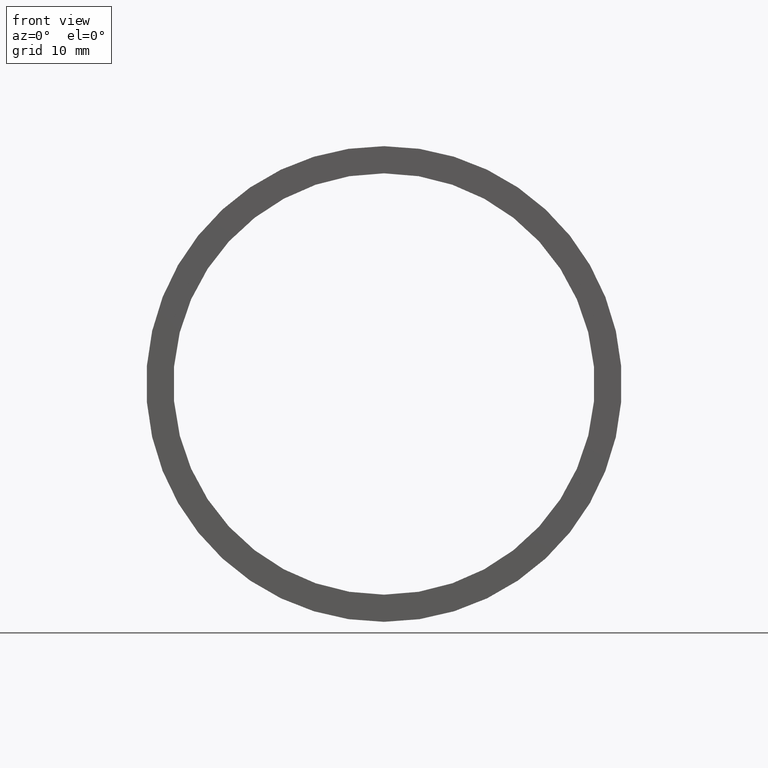
[diagram: clean part render]
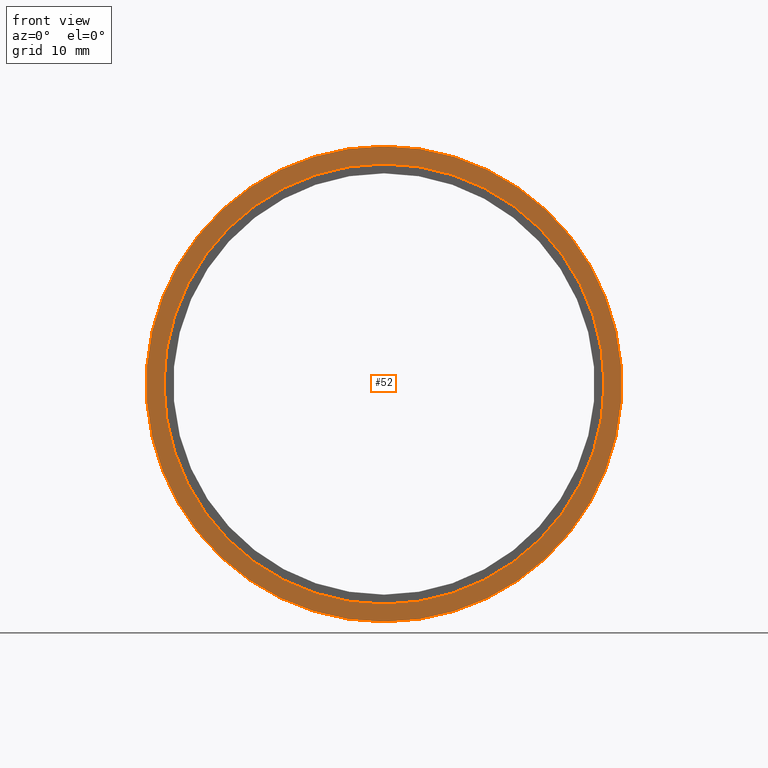
[diagram: same view with one face highlighted and labeled with its STEP entity id]
A machine part, front view. The second image highlights one B-rep face of the part: STEP entity #52.
In plain terms, the highlighted planar face has unit normal (-0, 1, 0).
Its self-contained STEP definition (entity closure, byte-faithful):
#27 = CARTESIAN_POINT ( 'NONE',  ( 0.0000000000000000000, -2.775557561562891400E-014, 0.0000000000000000000 ) ) ;
#28 = DIRECTION ( 'NONE',  ( -0.0000000000000000000, 1.000000000000000000, -0.0000000000000000000 ) ) ;
#52 = ADVANCED_FACE ( 'NONE', ( #333, #284 ), #423, .F. ) ;
#77 = DIRECTION ( 'NONE',  ( 0.0000000000000000000, 0.0000000000000000000, 1.000000000000000000 ) ) ;
#81 = AXIS2_PLACEMENT_3D ( 'NONE', #228, #318, #581 ) ;
#93 = AXIS2_PLACEMENT_3D ( 'NONE', #595, #276, #501 ) ;
#98 = DIRECTION ( 'NONE',  ( 0.0000000000000000000, 0.0000000000000000000, 1.000000000000000000 ) ) ;
#168 = EDGE_CURVE ( 'NONE', #301, #522, #425, .T. ) ;
#199 = ORIENTED_EDGE ( 'NONE', *, *, #463, .T. ) ;
#200 = CARTESIAN_POINT ( 'NONE',  ( 0.0000000000000000000, -2.775557561562891400E-014, 23.50000000000002100 ) ) ;
#228 = CARTESIAN_POINT ( 'NONE',  ( 0.0000000000000000000, -2.775557561562891400E-014, 0.0000000000000000000 ) ) ;
#276 = DIRECTION ( 'NONE',  ( -0.0000000000000000000, 1.000000000000000000, -0.0000000000000000000 ) ) ;
#279 = AXIS2_PLACEMENT_3D ( 'NONE', #477, #299, #98 ) ;
#284 = FACE_BOUND ( 'NONE', #360, .T. ) ;
#299 = DIRECTION ( 'NONE',  ( -0.0000000000000000000, 1.000000000000000000, 0.0000000000000000000 ) ) ;
#301 = VERTEX_POINT ( 'NONE', #498 ) ;
#312 = DIRECTION ( 'NONE',  ( 0.0000000000000000000, 0.0000000000000000000, 1.000000000000000000 ) ) ;
#317 = CIRCLE ( 'NONE', #93, 23.50000000000002100 ) ;
#318 = DIRECTION ( 'NONE',  ( -0.0000000000000000000, 1.000000000000000000, -0.0000000000000000000 ) ) ;
#321 = VERTEX_POINT ( 'NONE', #200 ) ;
#333 = FACE_OUTER_BOUND ( 'NONE', #419, .T. ) ;
#337 = AXIS2_PLACEMENT_3D ( 'NONE', #541, #355, #312 ) ;
#352 = CIRCLE ( 'NONE', #386, 25.40000000000001300 ) ;
#355 = DIRECTION ( 'NONE',  ( -0.0000000000000000000, 1.000000000000000000, -0.0000000000000000000 ) ) ;
#360 = EDGE_LOOP ( 'NONE', ( #199, #556 ) ) ;
#370 = ORIENTED_EDGE ( 'NONE', *, *, #168, .F. ) ;
#386 = AXIS2_PLACEMENT_3D ( 'NONE', #27, #28, #77 ) ;
#401 = CIRCLE ( 'NONE', #337, 23.50000000000002100 ) ;
#417 = ORIENTED_EDGE ( 'NONE', *, *, #568, .F. ) ;
#419 = EDGE_LOOP ( 'NONE', ( #417, #370 ) ) ;
#423 = PLANE ( 'NONE',  #279 ) ;
#425 = CIRCLE ( 'NONE', #81, 25.40000000000001300 ) ;
#439 = CARTESIAN_POINT ( 'NONE',  ( 2.877919977996282700E-015, -2.775557561562891400E-014, -23.50000000000002100 ) ) ;
#463 = EDGE_CURVE ( 'NONE', #321, #489, #401, .T. ) ;
#477 = CARTESIAN_POINT ( 'NONE',  ( 23.50000000000002100, -1.436345924723669800E-014, 0.0000000000000000000 ) ) ;
#489 = VERTEX_POINT ( 'NONE', #439 ) ;
#498 = CARTESIAN_POINT ( 'NONE',  ( 3.110602869834278800E-015, -2.775557561562891400E-014, -25.40000000000001300 ) ) ;
#501 = DIRECTION ( 'NONE',  ( 0.0000000000000000000, 0.0000000000000000000, 1.000000000000000000 ) ) ;
#520 = EDGE_CURVE ( 'NONE', #489, #321, #317, .T. ) ;
#522 = VERTEX_POINT ( 'NONE', #552 ) ;
#541 = CARTESIAN_POINT ( 'NONE',  ( 0.0000000000000000000, -2.775557561562891400E-014, 0.0000000000000000000 ) ) ;
#552 = CARTESIAN_POINT ( 'NONE',  ( 0.0000000000000000000, -2.775557561562891400E-014, 25.40000000000001300 ) ) ;
#556 = ORIENTED_EDGE ( 'NONE', *, *, #520, .T. ) ;
#568 = EDGE_CURVE ( 'NONE', #522, #301, #352, .T. ) ;
#581 = DIRECTION ( 'NONE',  ( 0.0000000000000000000, 0.0000000000000000000, 1.000000000000000000 ) ) ;
#595 = CARTESIAN_POINT ( 'NONE',  ( 0.0000000000000000000, -2.775557561562891400E-014, 0.0000000000000000000 ) ) ;